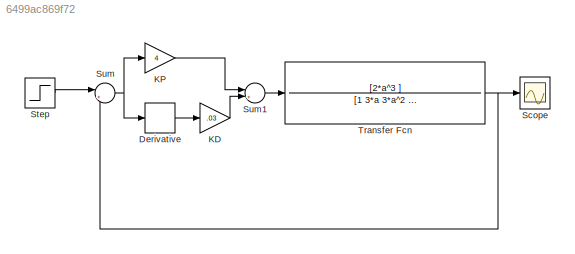
MODEL slx_6499ac869f72
KIND model
BLOCK [Derivative] Derivative
BLOCK [Gain] KD 
  Gain = .03
  OutDataTypeStr = Inherit: Inherit via internal rule
  ParamDataTypeStr = Inherit: Inherit via internal rule
  SaturateOnIntegerOverflow = off
BLOCK [Gain] KP
  Gain = 4
  OutDataTypeStr = Inherit: Inherit via internal rule
  ParamDataTypeStr = Inherit: Inherit via internal rule
  SaturateOnIntegerOverflow = off
BLOCK [Scope] Scope
  Floating = off
  NumInputPorts = 1
  Ports = [1]
  SampleTime = 0
  SaveName = ScopeData2
  SaveToWorkspace = on
  ShowLegends = off
  TickLabels = on
  TimeRange = 3
  YMax = 1.8
  YMin = 0
  ZoomMode = xonly
BLOCK [Step] Step
  SampleTime = 0
BLOCK [Sum] Sum
  IconShape = round
  InputSameDT = off
  Inputs = |+-
  OutDataTypeStr = Inherit: Inherit via internal rule
  Ports = [2, 1]
  SaturateOnIntegerOverflow = off
BLOCK [Sum] Sum1
  IconShape = round
  InputSameDT = off
  Inputs = |++
  OutDataTypeStr = Inherit: Inherit via internal rule
  Ports = [2, 1]
  SaturateOnIntegerOverflow = off
BLOCK [TransferFcn] Transfer Fcn
  Denominator = [1 3*a 3*a^2 a^3 ]
  Numerator = [2*a^3 ]
LINE Derivative:1 -> KD :1
LINE KD :1 -> Sum1:2
LINE KP:1 -> Sum1:1
LINE Step:1 -> Sum:1
LINE Sum1:1 -> Transfer Fcn:1
NET Sum:1 -> Derivative:1, KP:1
NET Transfer Fcn:1 -> Scope:1, Sum:2
note: NET lines group one-source signal fan-out (src -> all destinations, sorted); 1:1 wires keep LINE
